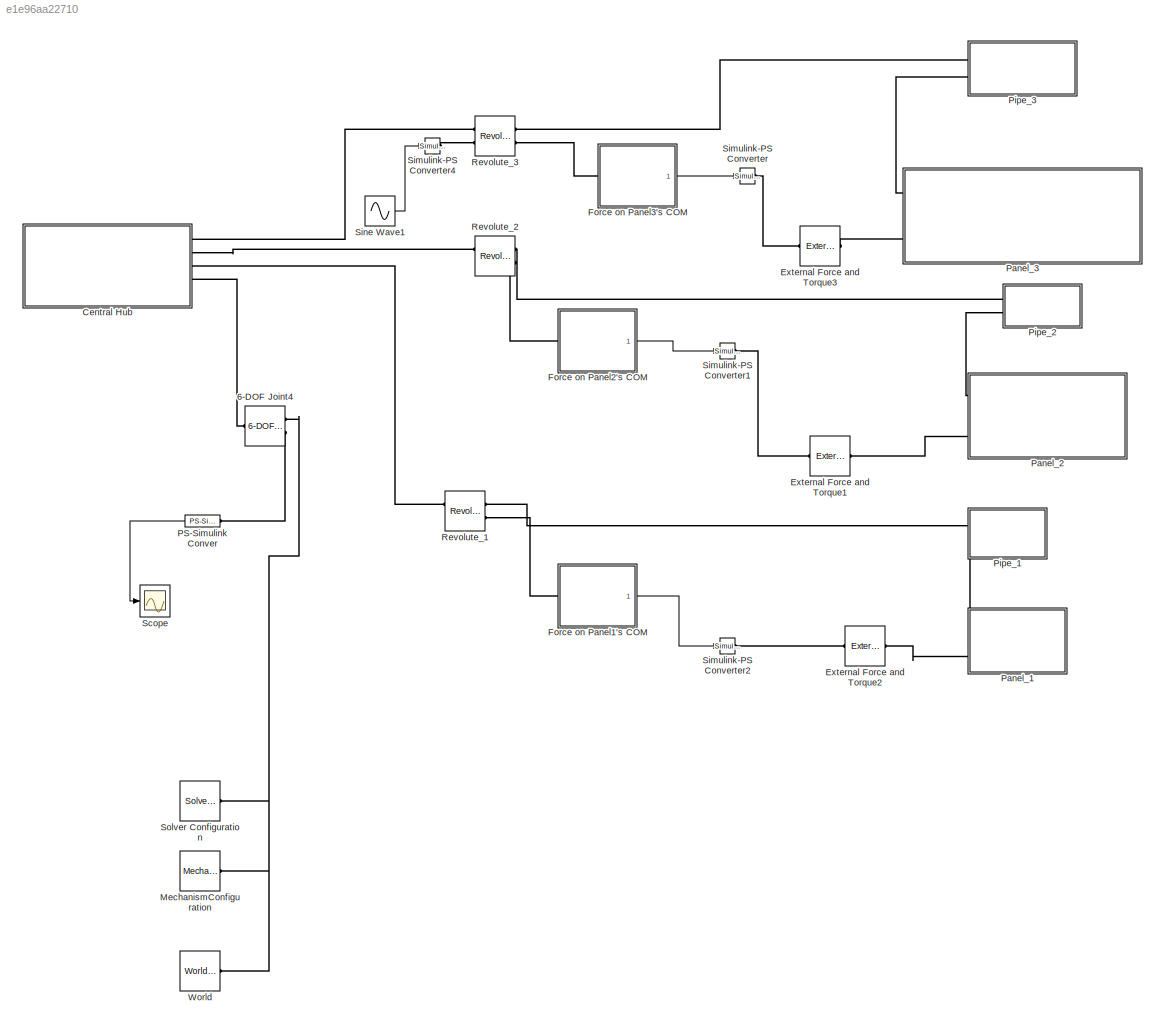
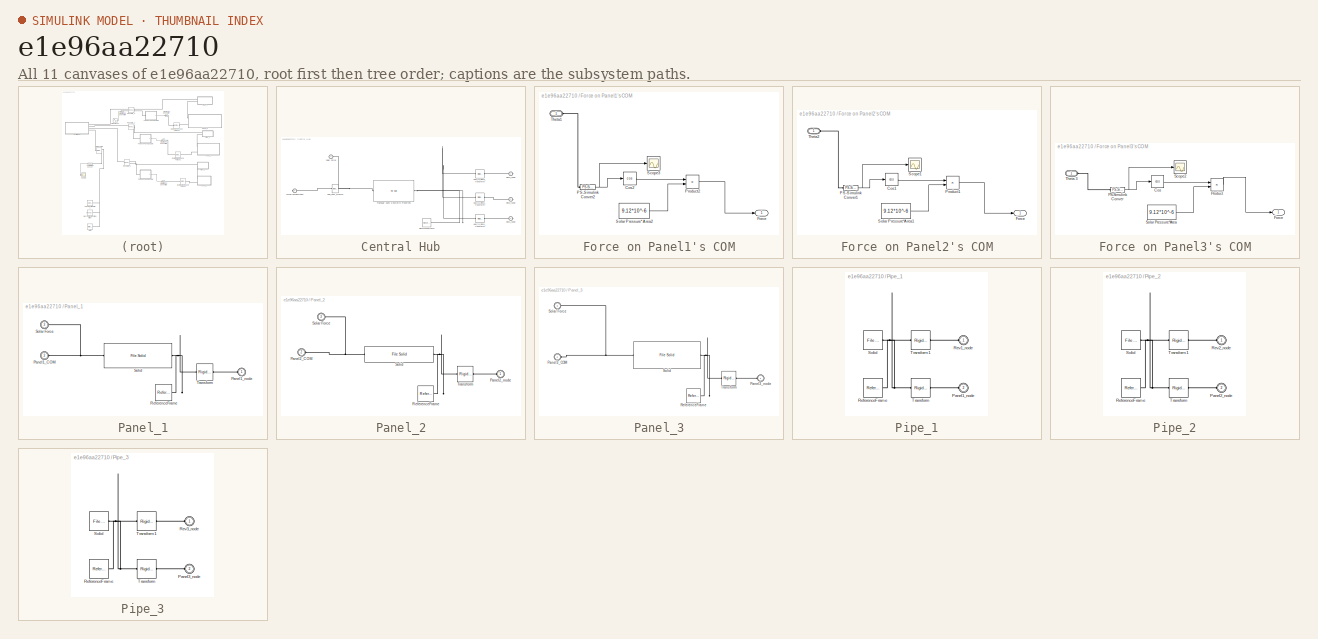
[diagram: thumbnail index - all 11 canvases of the model, root first then tree order]
MODEL slx_e1e96aa22710
KIND model
CONFIG AbsTol = auto
CONFIG EnableMultiTasking = off
CONFIG FixedStep = auto
CONFIG MaxStep = auto
CONFIG MinStep = auto
CONFIG RelTol = 1e-3
CONFIG SampleTimeConstraint = Unconstrained
CONFIG Solver = VariableStepAuto
CONFIG SolverName = VariableStepAuto
CONFIG StartTime = 0.0
CONFIG StopTime = 10.0
WORKSPACE source: external: MATLAB File  (data not in archive)
BLOCK [Reference] 6-DOF Joint4  REF=sm_lib/Joints/6-DOF Joint
  Ports = [0, 0, 0, 0, 0, 1, 2]
  SourceBlock = sm_lib/Joints/6-DOF Joint
  SourceProductBaseCode = MS
  SourceType = 6-DOF Joint
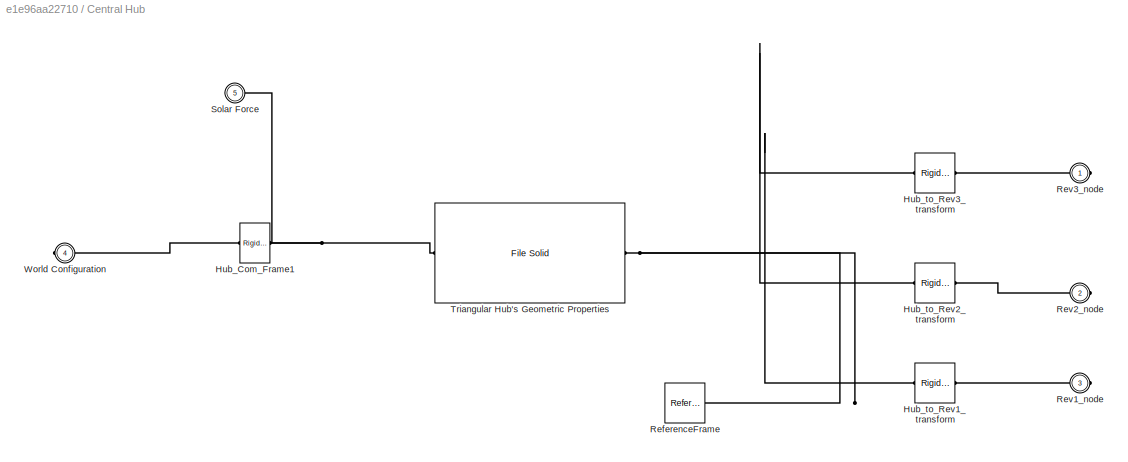
BLOCK [SubSystem] Central Hub
  Ports = [0, 0, 0, 0, 0, 0, 5]
  RequestExecContextInheritance = off
BLOCK [Reference] Central Hub/Hub_Com_Frame1  REF=sm_lib/Frames and
Transforms/Rigid
Transform
  Ports = [0, 0, 0, 0, 0, 1, 1]
  SourceBlock = sm_lib/Frames and\nTransforms/Rigid\nTransform
  SourceProductBaseCode = MS
  SourceType = Rigid\nTransform
BLOCK [Reference] Central Hub/Hub_to_Rev1_transform  REF=sm_lib/Frames and
Transforms/Rigid
Transform
  Ports = [0, 0, 0, 0, 0, 1, 1]
  SourceBlock = sm_lib/Frames and\nTransforms/Rigid\nTransform
  SourceProductBaseCode = MS
  SourceType = Rigid\nTransform
BLOCK [Reference] Central Hub/Hub_to_Rev2_transform  REF=sm_lib/Frames and
Transforms/Rigid
Transform
  Ports = [0, 0, 0, 0, 0, 1, 1]
  SourceBlock = sm_lib/Frames and\nTransforms/Rigid\nTransform
  SourceProductBaseCode = MS
  SourceType = Rigid\nTransform
BLOCK [Reference] Central Hub/Hub_to_Rev3_transform  REF=sm_lib/Frames and
Transforms/Rigid
Transform
  Ports = [0, 0, 0, 0, 0, 1, 1]
  SourceBlock = sm_lib/Frames and\nTransforms/Rigid\nTransform
  SourceProductBaseCode = MS
  SourceType = Rigid\nTransform
BLOCK [Reference] Central Hub/ReferenceFrame  REF=sm_lib/Frames and
Transforms/Reference
Frame
  Ports = [0, 0, 0, 0, 0, 0, 1]
  SourceBlock = sm_lib/Frames and\nTransforms/Reference\nFrame
  SourceProductBaseCode = MS
  SourceType = Reference\nFrame
BLOCK [PMIOPort] Central Hub/Rev1_node
  Port = 3
  Side = Right
BLOCK [PMIOPort] Central Hub/Rev2_node
  Port = 2
  Side = Right
BLOCK [PMIOPort] Central Hub/Rev3_node
  Side = Right
BLOCK [PMIOPort] Central Hub/Solar Force
  NameLocation = top
  Port = 5
  Side = Right
BLOCK [Reference] Central Hub/Triangular Hub's Geometric Properties  REF=sm_lib/Body Elements/File Solid
  Ports = [0, 0, 0, 0, 0, 1, 1]
  SourceBlock = sm_lib/Body Elements/File Solid
  SourceProductBaseCode = MS
  SourceType = File Solid
BLOCK [PMIOPort] Central Hub/World Configuration
  NameLocation = top
  Port = 4
  Side = Right
BLOCK [Reference] External Force and Torque1  REF=sm_lib/Forces and
Torques/External Force
and Torque
  Ports = [0, 0, 0, 0, 0, 1, 1]
  SourceBlock = sm_lib/Forces and\nTorques/External Force\nand Torque
  SourceProductBaseCode = MS
  SourceType = External Force\nand Torque
BLOCK [Reference] External Force and Torque2  REF=sm_lib/Forces and
Torques/External Force
and Torque
  Ports = [0, 0, 0, 0, 0, 1, 1]
  SourceBlock = sm_lib/Forces and\nTorques/External Force\nand Torque
  SourceProductBaseCode = MS
  SourceType = External Force\nand Torque
BLOCK [Reference] External Force and Torque3  REF=sm_lib/Forces and
Torques/External Force
and Torque
  Ports = [0, 0, 0, 0, 0, 1, 1]
  SourceBlock = sm_lib/Forces and\nTorques/External Force\nand Torque
  SourceProductBaseCode = MS
  SourceType = External Force\nand Torque
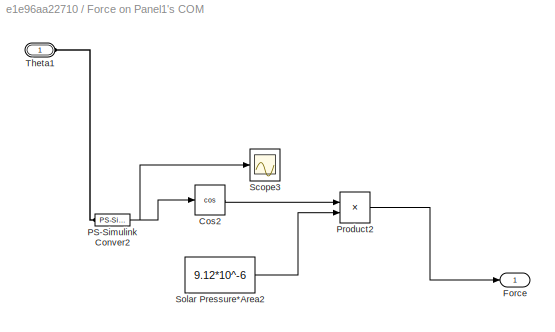
BLOCK [SubSystem] Force on Panel1's COM
  Ports = [0, 1, 0, 0, 0, 1]
  RequestExecContextInheritance = off
BLOCK [Trigonometry] Force on Panel1's COM/Cos2
  Operator = cos
  Ports = [1, 1]
BLOCK [Outport] Force on Panel1's COM/Force
BLOCK [Reference] Force on Panel1's COM/PS-Simulink Conver2  REF=nesl_utility/PS-Simulink
Converter
  Ports = [0, 1, 0, 0, 0, 1]
  SourceBlock = nesl_utility/PS-Simulink\nConverter
  SourceProductBaseCode = SS
  SourceType = PS-Simulink\nConverter
BLOCK [Product] Force on Panel1's COM/Product2
  Ports = [2, 1]
BLOCK [Scope] Force on Panel1's COM/Scope3
  Floating = off
  NumInputPorts = 1
  Ports = [1]
  ScopeSpecificationString = Simulink.scopes.TimeScopeBlockCfg('CurrentConfiguration', extmgr.ConfigurationSet(extmgr.Configuration('Core','General UI',true),extmgr.Configuration('Core','Source UI',true),extmgr.Configuration('Sources','WiredSimulink',true,'DataLoggingVariableName','ScopeData2'),extmgr.Configuration('Visuals','Time Domain',true),extmgr.Configuration('Tools','Plot Navigation',true),extmgr.Configuration('Tools',...<+40ch>
BLOCK [Constant] Force on Panel1's COM/Solar Pressure*Area2
  Value = 9.12*10^-6
BLOCK [PMIOPort] Force on Panel1's COM/Theta1
  Side = Left
BLOCK [SubSystem] Force on Panel2's COM
  Ports = [0, 1, 0, 0, 0, 1]
  RequestExecContextInheritance = off
BLOCK [Trigonometry] Force on Panel2's COM/Cos1
  Operator = cos
  Ports = [1, 1]
BLOCK [Outport] Force on Panel2's COM/Force
BLOCK [Reference] Force on Panel2's COM/PS-Simulink Conver1  REF=nesl_utility/PS-Simulink
Converter
  Ports = [0, 1, 0, 0, 0, 1]
  SourceBlock = nesl_utility/PS-Simulink\nConverter
  SourceProductBaseCode = SS
  SourceType = PS-Simulink\nConverter
BLOCK [Product] Force on Panel2's COM/Product1
  Ports = [2, 1]
BLOCK [Scope] Force on Panel2's COM/Scope1
  Floating = off
  NumInputPorts = 1
  Ports = [1]
  ScopeSpecificationString = Simulink.scopes.TimeScopeBlockCfg('CurrentConfiguration', extmgr.ConfigurationSet(extmgr.Configuration('Core','General UI',true),extmgr.Configuration('Core','Source UI',true),extmgr.Configuration('Sources','WiredSimulink',true,'DataLoggingVariableName','ScopeData1'),extmgr.Configuration('Visuals','Time Domain',true),extmgr.Configuration('Tools','Plot Navigation',true),extmgr.Configuration('Tools',...<+40ch>
BLOCK [Constant] Force on Panel2's COM/Solar Pressure*Area1
  Value = 9.12*10^-6
BLOCK [PMIOPort] Force on Panel2's COM/Theta2
  Side = Left
BLOCK [SubSystem] Force on Panel3's COM
  Ports = [0, 1, 0, 0, 0, 1]
  RequestExecContextInheritance = off
BLOCK [Trigonometry] Force on Panel3's COM/Cos
  Operator = cos
  Ports = [1, 1]
BLOCK [Outport] Force on Panel3's COM/Force
BLOCK [Reference] Force on Panel3's COM/PS-Simulink Conver  REF=nesl_utility/PS-Simulink
Converter
  Ports = [0, 1, 0, 0, 0, 1]
  SourceBlock = nesl_utility/PS-Simulink\nConverter
  SourceProductBaseCode = SS
  SourceType = PS-Simulink\nConverter
BLOCK [Product] Force on Panel3's COM/Product
  Ports = [2, 1]
BLOCK [Scope] Force on Panel3's COM/Scope2
  Floating = off
  NumInputPorts = 1
  Ports = [1]
  ScopeSpecificationString = Simulink.scopes.TimeScopeBlockCfg('CurrentConfiguration', extmgr.ConfigurationSet(extmgr.Configuration('Core','General UI',true),extmgr.Configuration('Core','Source UI',true),extmgr.Configuration('Sources','WiredSimulink',true),extmgr.Configuration('Visuals','Time Domain',true,'SerializedDisplays',{struct('MinYLimReal','-1.00000','MaxYLimReal','1.00000','YLabelReal','','MinYLimMag','0.00000','MaxY...<+1402ch>
BLOCK [Constant] Force on Panel3's COM/Solar Pressure*Area
  Value = 9.12*10^-6
BLOCK [PMIOPort] Force on Panel3's COM/Theta 3
  Side = Left
BLOCK [Reference] MechanismConfiguration  REF=sm_lib/Utilities/Mechanism
Configuration
  Ports = [0, 0, 0, 0, 0, 0, 1]
  SourceBlock = sm_lib/Utilities/Mechanism\nConfiguration
  SourceProductBaseCode = MS
  SourceType = Mechanism\nConfiguration
BLOCK [Reference] PS-Simulink Conver  REF=nesl_utility/PS-Simulink
Converter
  NameLocation = top
  Ports = [0, 1, 0, 0, 0, 1]
  SourceBlock = nesl_utility/PS-Simulink\nConverter
  SourceProductBaseCode = SS
  SourceType = PS-Simulink\nConverter
BLOCK [SubSystem] Panel_1
  Ports = [0, 0, 0, 0, 0, 3]
  RequestExecContextInheritance = off
BLOCK [PMIOPort] Panel_1/Panel1_COM
  NameLocation = top
  Port = 2
  Side = Left
BLOCK [PMIOPort] Panel_1/Panel1_node
  Side = Left
BLOCK [Reference] Panel_1/ReferenceFrame  REF=sm_lib/Frames and
Transforms/Reference
Frame
  Ports = [0, 0, 0, 0, 0, 0, 1]
  SourceBlock = sm_lib/Frames and\nTransforms/Reference\nFrame
  SourceProductBaseCode = MS
  SourceType = Reference\nFrame
BLOCK [PMIOPort] Panel_1/Solar Force
  NameLocation = top
  Port = 3
  Side = Left
BLOCK [Reference] Panel_1/Solid  REF=sm_lib/Body Elements/File Solid
  Ports = [0, 0, 0, 0, 0, 1, 1]
  SourceBlock = sm_lib/Body Elements/File Solid
  SourceProductBaseCode = MS
  SourceType = File Solid
BLOCK [Reference] Panel_1/Transform  REF=sm_lib/Frames and
Transforms/Rigid
Transform
  Ports = [0, 0, 0, 0, 0, 1, 1]
  SourceBlock = sm_lib/Frames and\nTransforms/Rigid\nTransform
  SourceProductBaseCode = MS
  SourceType = Rigid\nTransform
BLOCK [SubSystem] Panel_2
  Ports = [0, 0, 0, 0, 0, 3]
  RequestExecContextInheritance = off
BLOCK [PMIOPort] Panel_2/Panel2_COM
  NameLocation = top
  Port = 2
  Side = Left
BLOCK [PMIOPort] Panel_2/Panel2_node
  Side = Left
BLOCK [Reference] Panel_2/ReferenceFrame  REF=sm_lib/Frames and
Transforms/Reference
Frame
  Ports = [0, 0, 0, 0, 0, 0, 1]
  SourceBlock = sm_lib/Frames and\nTransforms/Reference\nFrame
  SourceProductBaseCode = MS
  SourceType = Reference\nFrame
BLOCK [PMIOPort] Panel_2/Solar Force
  NameLocation = top
  Port = 3
  Side = Left
BLOCK [Reference] Panel_2/Solid  REF=sm_lib/Body Elements/File Solid
  Ports = [0, 0, 0, 0, 0, 1, 1]
  SourceBlock = sm_lib/Body Elements/File Solid
  SourceProductBaseCode = MS
  SourceType = File Solid
BLOCK [Reference] Panel_2/Transform  REF=sm_lib/Frames and
Transforms/Rigid
Transform
  Ports = [0, 0, 0, 0, 0, 1, 1]
  SourceBlock = sm_lib/Frames and\nTransforms/Rigid\nTransform
  SourceProductBaseCode = MS
  SourceType = Rigid\nTransform
BLOCK [SubSystem] Panel_3
  Ports = [0, 0, 0, 0, 0, 3]
  RequestExecContextInheritance = off
BLOCK [PMIOPort] Panel_3/Panel3_COM
  NameLocation = top
  Port = 2
  Side = Left
BLOCK [PMIOPort] Panel_3/Panel3_node
  Side = Left
BLOCK [Reference] Panel_3/ReferenceFrame  REF=sm_lib/Frames and
Transforms/Reference
Frame
  Ports = [0, 0, 0, 0, 0, 0, 1]
  SourceBlock = sm_lib/Frames and\nTransforms/Reference\nFrame
  SourceProductBaseCode = MS
  SourceType = Reference\nFrame
BLOCK [PMIOPort] Panel_3/Solar Force
  NameLocation = top
  Port = 3
  Side = Left
BLOCK [Reference] Panel_3/Solid  REF=sm_lib/Body Elements/File Solid
  Ports = [0, 0, 0, 0, 0, 1, 1]
  SourceBlock = sm_lib/Body Elements/File Solid
  SourceProductBaseCode = MS
  SourceType = File Solid
BLOCK [Reference] Panel_3/Transform  REF=sm_lib/Frames and
Transforms/Rigid
Transform
  Ports = [0, 0, 0, 0, 0, 1, 1]
  SourceBlock = sm_lib/Frames and\nTransforms/Rigid\nTransform
  SourceProductBaseCode = MS
  SourceType = Rigid\nTransform
BLOCK [SubSystem] Pipe_1
  Ports = [0, 0, 0, 0, 0, 2]
  RequestExecContextInheritance = off
BLOCK [PMIOPort] Pipe_1/Panel1_node
  Port = 2
  Side = Left
BLOCK [Reference] Pipe_1/ReferenceFrame  REF=sm_lib/Frames and
Transforms/Reference
Frame
  Ports = [0, 0, 0, 0, 0, 0, 1]
  SourceBlock = sm_lib/Frames and\nTransforms/Reference\nFrame
  SourceProductBaseCode = MS
  SourceType = Reference\nFrame
BLOCK [PMIOPort] Pipe_1/Rev1_node
  Side = Left
BLOCK [Reference] Pipe_1/Solid  REF=sm_lib/Body Elements/File Solid
  Ports = [0, 0, 0, 0, 0, 0, 1]
  SourceBlock = sm_lib/Body Elements/File Solid
  SourceProductBaseCode = MS
  SourceType = File Solid
BLOCK [Reference] Pipe_1/Transform  REF=sm_lib/Frames and
Transforms/Rigid
Transform
  Ports = [0, 0, 0, 0, 0, 1, 1]
  SourceBlock = sm_lib/Frames and\nTransforms/Rigid\nTransform
  SourceProductBaseCode = MS
  SourceType = Rigid\nTransform
BLOCK [Reference] Pipe_1/Transform1  REF=sm_lib/Frames and
Transforms/Rigid
Transform
  Ports = [0, 0, 0, 0, 0, 1, 1]
  SourceBlock = sm_lib/Frames and\nTransforms/Rigid\nTransform
  SourceProductBaseCode = MS
  SourceType = Rigid\nTransform
BLOCK [SubSystem] Pipe_2
  Ports = [0, 0, 0, 0, 0, 2]
  RequestExecContextInheritance = off
BLOCK [PMIOPort] Pipe_2/Panel2_node
  Port = 2
  Side = Left
BLOCK [Reference] Pipe_2/ReferenceFrame  REF=sm_lib/Frames and
Transforms/Reference
Frame
  Ports = [0, 0, 0, 0, 0, 0, 1]
  SourceBlock = sm_lib/Frames and\nTransforms/Reference\nFrame
  SourceProductBaseCode = MS
  SourceType = Reference\nFrame
BLOCK [PMIOPort] Pipe_2/Rev2_node
  Side = Left
BLOCK [Reference] Pipe_2/Solid  REF=sm_lib/Body Elements/File Solid
  Ports = [0, 0, 0, 0, 0, 0, 1]
  SourceBlock = sm_lib/Body Elements/File Solid
  SourceProductBaseCode = MS
  SourceType = File Solid
BLOCK [Reference] Pipe_2/Transform  REF=sm_lib/Frames and
Transforms/Rigid
Transform
  Ports = [0, 0, 0, 0, 0, 1, 1]
  SourceBlock = sm_lib/Frames and\nTransforms/Rigid\nTransform
  SourceProductBaseCode = MS
  SourceType = Rigid\nTransform
BLOCK [Reference] Pipe_2/Transform1  REF=sm_lib/Frames and
Transforms/Rigid
Transform
  Ports = [0, 0, 0, 0, 0, 1, 1]
  SourceBlock = sm_lib/Frames and\nTransforms/Rigid\nTransform
  SourceProductBaseCode = MS
  SourceType = Rigid\nTransform
BLOCK [SubSystem] Pipe_3
  Ports = [0, 0, 0, 0, 0, 2]
  RequestExecContextInheritance = off
BLOCK [PMIOPort] Pipe_3/Panel3_node
  Port = 2
  Side = Left
BLOCK [Reference] Pipe_3/ReferenceFrame  REF=sm_lib/Frames and
Transforms/Reference
Frame
  Ports = [0, 0, 0, 0, 0, 0, 1]
  SourceBlock = sm_lib/Frames and\nTransforms/Reference\nFrame
  SourceProductBaseCode = MS
  SourceType = Reference\nFrame
BLOCK [PMIOPort] Pipe_3/Rev3_node
  Side = Left
BLOCK [Reference] Pipe_3/Solid  REF=sm_lib/Body Elements/File Solid
  Ports = [0, 0, 0, 0, 0, 0, 1]
  SourceBlock = sm_lib/Body Elements/File Solid
  SourceProductBaseCode = MS
  SourceType = File Solid
BLOCK [Reference] Pipe_3/Transform  REF=sm_lib/Frames and
Transforms/Rigid
Transform
  Ports = [0, 0, 0, 0, 0, 1, 1]
  SourceBlock = sm_lib/Frames and\nTransforms/Rigid\nTransform
  SourceProductBaseCode = MS
  SourceType = Rigid\nTransform
BLOCK [Reference] Pipe_3/Transform1  REF=sm_lib/Frames and
Transforms/Rigid
Transform
  Ports = [0, 0, 0, 0, 0, 1, 1]
  SourceBlock = sm_lib/Frames and\nTransforms/Rigid\nTransform
  SourceProductBaseCode = MS
  SourceType = Rigid\nTransform
BLOCK [Reference] Revolute_1  REF=sm_lib/Joints/Revolute Joint
  Ports = [0, 0, 0, 0, 0, 2, 2]
  SourceBlock = sm_lib/Joints/Revolute Joint
  SourceProductBaseCode = MS
  SourceType = Revolute Joint
BLOCK [Reference] Revolute_2  REF=sm_lib/Joints/Revolute Joint
  Ports = [0, 0, 0, 0, 0, 2, 2]
  SourceBlock = sm_lib/Joints/Revolute Joint
  SourceProductBaseCode = MS
  SourceType = Revolute Joint
BLOCK [Reference] Revolute_3  REF=sm_lib/Joints/Revolute Joint
  Ports = [0, 0, 0, 0, 0, 2, 2]
  SourceBlock = sm_lib/Joints/Revolute Joint
  SourceProductBaseCode = MS
  SourceType = Revolute Joint
BLOCK [Scope] Scope
  Floating = off
  NumInputPorts = 1
  Ports = [1]
  ScopeSpecificationString = Simulink.scopes.TimeScopeBlockCfg('CurrentConfiguration', extmgr.ConfigurationSet(extmgr.Configuration('Core','General UI',true),extmgr.Configuration('Core','Source UI',true),extmgr.Configuration('Sources','WiredSimulink',true,'DataLoggingVariableName','ScopeData3'),extmgr.Configuration('Visuals','Time Domain',true,'SerializedDisplays',{struct('MinYLimReal','0.000000000001691','MaxYLimReal','0.000...<+1551ch>
BLOCK [Reference] Simulink-PS Converter  REF=nesl_utility/Simulink-PS
Converter
  Ports = [1, 0, 0, 0, 0, 0, 1]
  SourceBlock = nesl_utility/Simulink-PS\nConverter
  SourceProductBaseCode = SS
  SourceType = Simulink-PS\nConverter
BLOCK [Reference] Simulink-PS Converter1  REF=nesl_utility/Simulink-PS
Converter
  Ports = [1, 0, 0, 0, 0, 0, 1]
  SourceBlock = nesl_utility/Simulink-PS\nConverter
  SourceProductBaseCode = SS
  SourceType = Simulink-PS\nConverter
BLOCK [Reference] Simulink-PS Converter2  REF=nesl_utility/Simulink-PS
Converter
  Ports = [1, 0, 0, 0, 0, 0, 1]
  SourceBlock = nesl_utility/Simulink-PS\nConverter
  SourceProductBaseCode = SS
  SourceType = Simulink-PS\nConverter
BLOCK [Reference] Simulink-PS Converter4  REF=nesl_utility/Simulink-PS
Converter
  Ports = [1, 0, 0, 0, 0, 0, 1]
  SourceBlock = nesl_utility/Simulink-PS\nConverter
  SourceProductBaseCode = SS
  SourceType = Simulink-PS\nConverter
BLOCK [Sin] Sine Wave1
  Frequency = .1
  Ports = [0, 1]
  SampleTime = 0
BLOCK [Reference] Solver Configuration  REF=nesl_utility/Solver
Configuration
  Ports = [0, 0, 0, 0, 0, 0, 1]
  SourceBlock = nesl_utility/Solver\nConfiguration
  SourceProductBaseCode = SS
  SourceType = Solver\nConfiguration
BLOCK [Reference] World  REF=sm_lib/Frames and
Transforms/World Frame
  Ports = [0, 0, 0, 0, 0, 0, 1]
  SourceBlock = sm_lib/Frames and\nTransforms/World Frame
  SourceProductBaseCode = MS
  SourceType = World Frame
LINE Force on Panel1's COM/Cos2:1 -> Force on Panel1's COM/Product2:1
NET Force on Panel1's COM/PS-Simulink Conver2:1 -> Force on Panel1's COM/Cos2:1, Force on Panel1's COM/Scope3:1
LINE Force on Panel1's COM/Product2:1 -> Force on Panel1's COM/Force:1
LINE Force on Panel1's COM/Solar Pressure*Area2:1 -> Force on Panel1's COM/Product2:2
LINE Force on Panel1's COM:1 -> Simulink-PS Converter2:1
LINE Force on Panel2's COM/Cos1:1 -> Force on Panel2's COM/Product1:1
NET Force on Panel2's COM/PS-Simulink Conver1:1 -> Force on Panel2's COM/Cos1:1, Force on Panel2's COM/Scope1:1
LINE Force on Panel2's COM/Product1:1 -> Force on Panel2's COM/Force:1
LINE Force on Panel2's COM/Solar Pressure*Area1:1 -> Force on Panel2's COM/Product1:2
LINE Force on Panel2's COM:1 -> Simulink-PS Converter1:1
LINE Force on Panel3's COM/Cos:1 -> Force on Panel3's COM/Product:1
NET Force on Panel3's COM/PS-Simulink Conver:1 -> Force on Panel3's COM/Cos:1, Force on Panel3's COM/Scope2:1
LINE Force on Panel3's COM/Product:1 -> Force on Panel3's COM/Force:1
LINE Force on Panel3's COM/Solar Pressure*Area:1 -> Force on Panel3's COM/Product:2
LINE Force on Panel3's COM:1 -> Simulink-PS Converter:1
LINE PS-Simulink Conver:1 -> Scope:1
LINE Sine Wave1:1 -> Simulink-PS Converter4:1
PLINE 6-DOF Joint4:LConn1 -- Central Hub:RConn4
PNET net1: 6-DOF Joint4:RConn1 -- MechanismConfiguration:RConn1 -- Solver Configuration:RConn1 -- World:RConn1
PLINE 6-DOF Joint4:RConn2 -- PS-Simulink Conver:LConn1
PLINE Central Hub/Hub_Com_Frame1:LConn1 -- Central Hub/World Configuration:RConn1
PNET net2: Central Hub/Hub_Com_Frame1:RConn1 -- Central Hub/Solar Force:RConn1 -- Central Hub/Triangular Hub's Geometric Properties:LConn1
PNET net3: Central Hub/Hub_to_Rev1_transform:LConn1 -- Central Hub/Hub_to_Rev2_transform:LConn1 -- Central Hub/Hub_to_Rev3_transform:LConn1 -- Central Hub/ReferenceFrame:RConn1 -- Central Hub/Triangular Hub's Geometric Properties:RConn1
PLINE Central Hub/Hub_to_Rev1_transform:RConn1 -- Central Hub/Rev1_node:RConn1
PLINE Central Hub/Hub_to_Rev2_transform:RConn1 -- Central Hub/Rev2_node:RConn1
PLINE Central Hub/Hub_to_Rev3_transform:RConn1 -- Central Hub/Rev3_node:RConn1
PLINE Central Hub:RConn1 -- Revolute_3:LConn1
PLINE Central Hub:RConn2 -- Revolute_2:LConn1
PLINE Central Hub:RConn3 -- Revolute_1:LConn1
PLINE External Force and Torque1:LConn1 -- Simulink-PS Converter1:RConn1
PLINE External Force and Torque1:RConn1 -- Panel_2:LConn3
PLINE External Force and Torque2:LConn1 -- Simulink-PS Converter2:RConn1
PLINE External Force and Torque2:RConn1 -- Panel_1:LConn3
PLINE External Force and Torque3:LConn1 -- Simulink-PS Converter:RConn1
PLINE External Force and Torque3:RConn1 -- Panel_3:LConn3
PLINE Force on Panel1's COM/PS-Simulink Conver2:LConn1 -- Force on Panel1's COM/Theta1:RConn1
PLINE Force on Panel1's COM:LConn1 -- Revolute_1:RConn2
PLINE Force on Panel2's COM/PS-Simulink Conver1:LConn1 -- Force on Panel2's COM/Theta2:RConn1
PLINE Force on Panel2's COM:LConn1 -- Revolute_2:RConn2
PLINE Force on Panel3's COM/PS-Simulink Conver:LConn1 -- Force on Panel3's COM/Theta 3:RConn1
PLINE Force on Panel3's COM:LConn1 -- Revolute_3:RConn2
PNET net4: Panel_1/Panel1_COM:RConn1 -- Panel_1/Solar Force:RConn1 -- Panel_1/Solid:LConn1
PLINE Panel_1/Panel1_node:RConn1 -- Panel_1/Transform:RConn1
PNET net5: Panel_1/ReferenceFrame:RConn1 -- Panel_1/Solid:RConn1 -- Panel_1/Transform:LConn1
PLINE Panel_1:LConn1 -- Pipe_1:LConn2
PNET net6: Panel_2/Panel2_COM:RConn1 -- Panel_2/Solar Force:RConn1 -- Panel_2/Solid:LConn1
PLINE Panel_2/Panel2_node:RConn1 -- Panel_2/Transform:RConn1
PNET net7: Panel_2/ReferenceFrame:RConn1 -- Panel_2/Solid:RConn1 -- Panel_2/Transform:LConn1
PLINE Panel_2:LConn1 -- Pipe_2:LConn2
PNET net8: Panel_3/Panel3_COM:RConn1 -- Panel_3/Solar Force:RConn1 -- Panel_3/Solid:LConn1
PLINE Panel_3/Panel3_node:RConn1 -- Panel_3/Transform:RConn1
PNET net9: Panel_3/ReferenceFrame:RConn1 -- Panel_3/Solid:RConn1 -- Panel_3/Transform:LConn1
PLINE Panel_3:LConn1 -- Pipe_3:LConn2
PLINE Pipe_1/Panel1_node:RConn1 -- Pipe_1/Transform:RConn1
PNET net10: Pipe_1/ReferenceFrame:RConn1 -- Pipe_1/Solid:RConn1 -- Pipe_1/Transform1:LConn1 -- Pipe_1/Transform:LConn1
PLINE Pipe_1/Rev1_node:RConn1 -- Pipe_1/Transform1:RConn1
PLINE Pipe_1:LConn1 -- Revolute_1:RConn1
PLINE Pipe_2/Panel2_node:RConn1 -- Pipe_2/Transform:RConn1
PNET net11: Pipe_2/ReferenceFrame:RConn1 -- Pipe_2/Solid:RConn1 -- Pipe_2/Transform1:LConn1 -- Pipe_2/Transform:LConn1
PLINE Pipe_2/Rev2_node:RConn1 -- Pipe_2/Transform1:RConn1
PLINE Pipe_2:LConn1 -- Revolute_2:RConn1
PLINE Pipe_3/Panel3_node:RConn1 -- Pipe_3/Transform:RConn1
PNET net12: Pipe_3/ReferenceFrame:RConn1 -- Pipe_3/Solid:RConn1 -- Pipe_3/Transform1:LConn1 -- Pipe_3/Transform:LConn1
PLINE Pipe_3/Rev3_node:RConn1 -- Pipe_3/Transform1:RConn1
PLINE Pipe_3:LConn1 -- Revolute_3:RConn1
PLINE Revolute_3:LConn2 -- Simulink-PS Converter4:RConn1
note: NET lines group one-source signal fan-out (src -> all destinations, sorted); 1:1 wires keep LINE; PNET lines group multi-terminal physical nets as a canonical sorted terminal list (undirected conserving connections); 2-terminal nets keep the pairwise PLINE form
